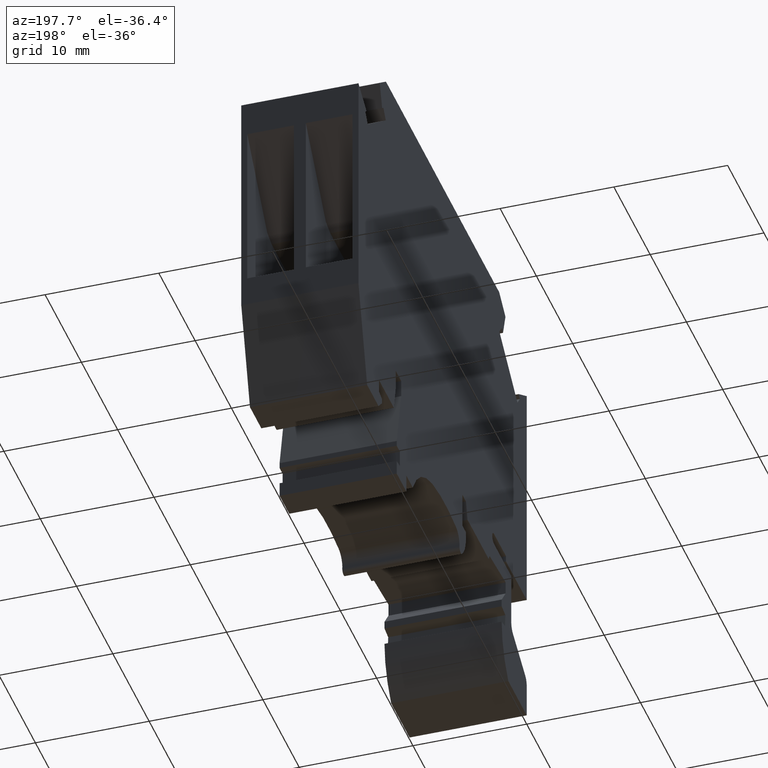
[diagram: clean part render]
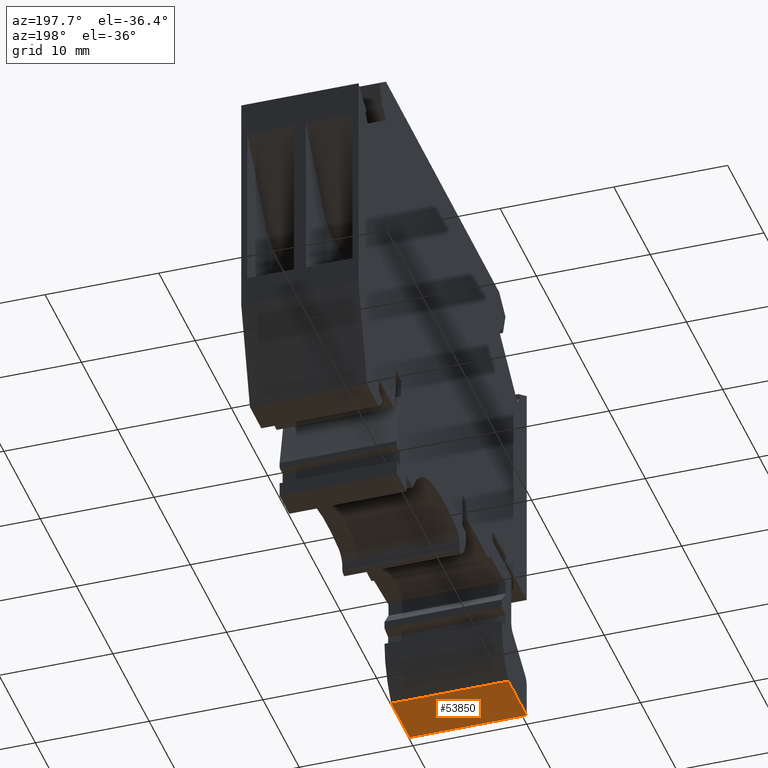
[diagram: same view with one face highlighted and labeled with its STEP entity id]
A machine part, auxiliary view. The second image highlights one B-rep face of the part: STEP entity #53850.
In plain terms, the highlighted planar face has unit normal (0, 0, -1).
Its self-contained STEP definition (entity closure, byte-faithful):
#4820=CARTESIAN_POINT('',(-39.7810787227897,4.22952375155828,10.3));
#4830=VERTEX_POINT('',#4820);
#4860=CARTESIAN_POINT('',(-56.8069065338077,4.22952375155828,10.3));
#4870=DIRECTION('',(1.,0.,0.));
#4880=VECTOR('',#4870,1.);
#4890=LINE('',#4860,#4880);
#4900=CARTESIAN_POINT('',(-44.8520985338077,4.22952375155828,10.3));
#4910=VERTEX_POINT('',#4900);
#4920=EDGE_CURVE('',#4910,#4830,#4890,.T.);
#6540=CARTESIAN_POINT('',(-44.8520985338077,4.22952375155828,
3.5527136788005E-15));
#6550=VERTEX_POINT('',#6540);
#6580=CARTESIAN_POINT('',(-56.8069065338077,4.22952375155828,
3.5527136788005E-15));
#6590=DIRECTION('',(-1.,0.,0.));
#6600=VECTOR('',#6590,1.);
#6610=LINE('',#6580,#6600);
#6620=CARTESIAN_POINT('',(-39.7810787227897,4.22952375155828,
-7.105427357601E-15));
#6630=VERTEX_POINT('',#6620);
#6640=EDGE_CURVE('',#6630,#6550,#6610,.T.);
#12690=CARTESIAN_POINT('',(-44.8520985338077,4.22952375155828,
-5.14999999999999));
#12700=DIRECTION('',(0.,0.,-1.));
#12710=VECTOR('',#12700,1.);
#12720=LINE('',#12690,#12710);
#12730=EDGE_CURVE('',#4910,#6550,#12720,.T.);
#13000=CARTESIAN_POINT('',(-39.7810787227897,4.22952375155828,5.15));
#13010=DIRECTION('',(0.,0.,1.));
#13020=VECTOR('',#13010,1.);
#13030=LINE('',#13000,#13020);
#13040=EDGE_CURVE('',#6630,#4830,#13030,.T.);
#53740=CARTESIAN_POINT('',(-44.8520985338077,4.22952375155828,5.15));
#53750=DIRECTION('',(-0.,-1.,-0.));
#53760=DIRECTION('',(-1.,0.,0.));
#53770=AXIS2_PLACEMENT_3D('',#53740,#53750,#53760);
#53780=PLANE('',#53770);
#53790=ORIENTED_EDGE('',*,*,#4920,.F.);
#53800=ORIENTED_EDGE('',*,*,#13040,.T.);
#53810=ORIENTED_EDGE('',*,*,#6640,.F.);
#53820=ORIENTED_EDGE('',*,*,#12730,.T.);
#53830=EDGE_LOOP('',(#53820,#53810,#53800,#53790));
#53840=FACE_OUTER_BOUND('',#53830,.T.);
#53850=ADVANCED_FACE('',(#53840),#53780,.T.);